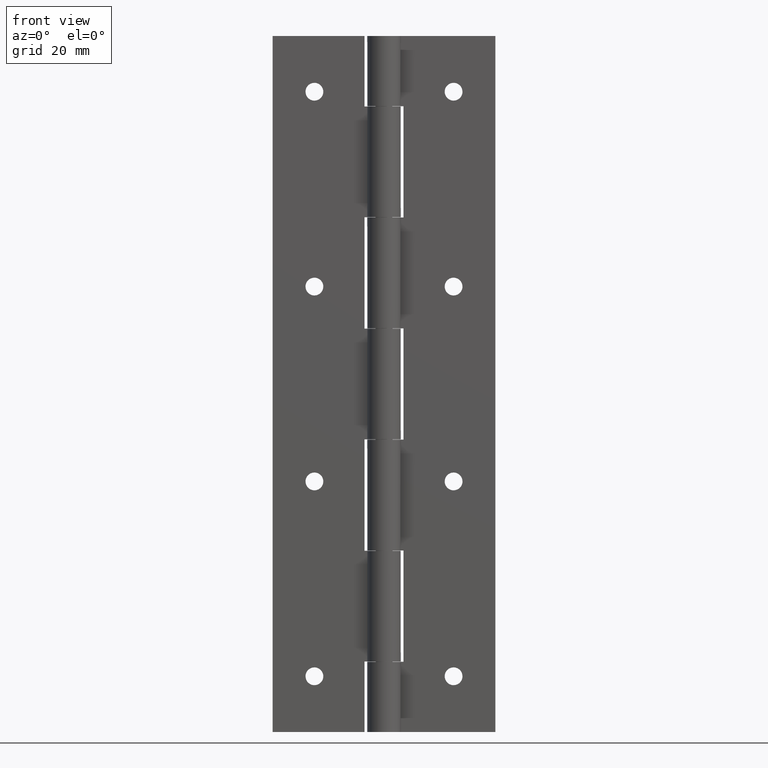
[diagram: clean part render]
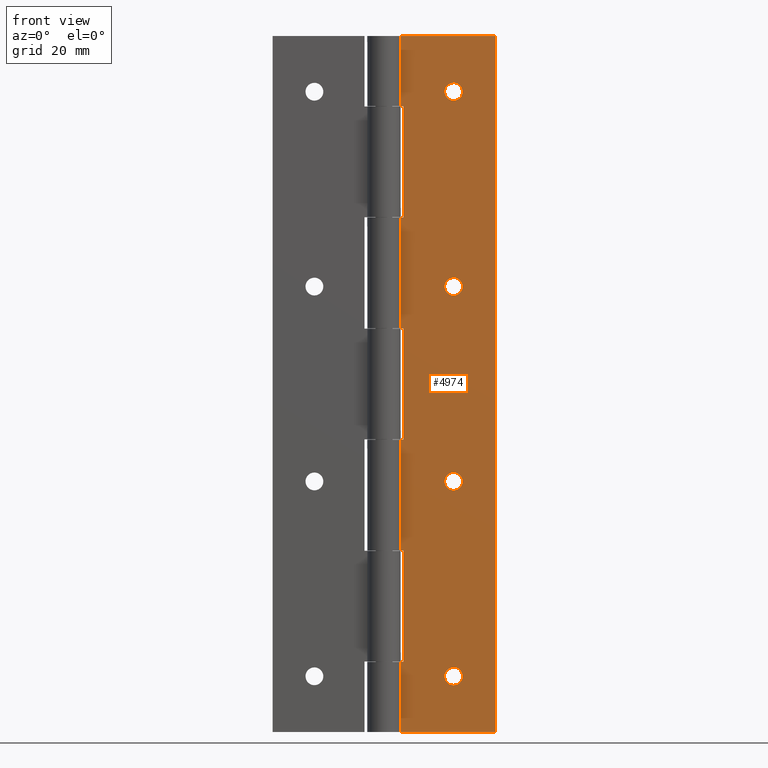
[diagram: same view with one face highlighted and labeled with its STEP entity id]
A machine part, front view. The second image highlights one B-rep face of the part: STEP entity #4974.
In plain terms, the highlighted face is a freeform B-spline surface patch.
Its self-contained STEP definition (entity closure, byte-faithful):
#3541=CARTESIAN_POINT('',(12.500000000000000,0.800000000000023,116.599999999999990));
#3542=VERTEX_POINT('',#3541);
#3543=CARTESIAN_POINT('',(10.904932266108959,0.800000000000023,115.125534554206000));
#3544=VERTEX_POINT('',#3543);
#3545=CARTESIAN_POINT('',(12.500000000000000,0.800000000000023,116.599999999999990));
#3546=CARTESIAN_POINT('',(11.020975215284272,0.800000000000023,116.600000000000010));
#3547=CARTESIAN_POINT('',(10.904932266108968,0.800000000000023,115.125534554206030));
#3555=(BOUNDED_CURVE()B_SPLINE_CURVE(2,(#3545,#3546,#3547),.UNSPECIFIED.,.F.,.U.)B_SPLINE_CURVE_WITH_KNOTS((3,3),(0.0,0.236331300408907),.UNSPECIFIED.)CURVE()GEOMETRIC_REPRESENTATION_ITEM()RATIONAL_B_SPLINE_CURVE((1.0,0.723120658867465,0.969723355704637))REPRESENTATION_ITEM(''));
#3556=EDGE_CURVE('',#3542,#3544,#3555,.T.);
#3597=CARTESIAN_POINT('',(14.095067733891041,0.800000000000023,114.874465445794000));
#3598=VERTEX_POINT('',#3597);
#3604=CARTESIAN_POINT('',(14.095067733891035,0.800000000000023,114.874465445793990));
#3605=CARTESIAN_POINT('',(14.100000000000007,0.800000000000023,114.937135827741410));
#3606=CARTESIAN_POINT('',(14.100000000000000,0.800000000000023,115.0));
#3607=CARTESIAN_POINT('',(14.100000000000001,0.800000000000023,116.600000000000010));
#3608=CARTESIAN_POINT('',(12.500000000000000,0.800000000000023,116.599999999999990));
#3616=(BOUNDED_CURVE()B_SPLINE_CURVE(2,(#3604,#3605,#3606,#3607,#3608),.UNSPECIFIED.,.F.,.U.)B_SPLINE_CURVE_WITH_KNOTS((3,2,3),(0.736331300408906,0.750000000000000,1.0),.UNSPECIFIED.)CURVE()GEOMETRIC_REPRESENTATION_ITEM()RATIONAL_B_SPLINE_CURVE((0.969723355704634,0.983986122319081,1.0,0.707106781186548,1.0))REPRESENTATION_ITEM(''));
#3617=EDGE_CURVE('',#3598,#3542,#3616,.T.);
#3640=CARTESIAN_POINT('',(12.500000000000000,0.800000000000023,113.400000000000010));
#3641=VERTEX_POINT('',#3640);
#3642=CARTESIAN_POINT('',(10.904932266108968,0.800000000000023,115.125534554206030));
#3643=CARTESIAN_POINT('',(10.899999999999999,0.800000000000023,115.062864172258560));
#3644=CARTESIAN_POINT('',(10.900000000000000,0.800000000000023,115.0));
#3645=CARTESIAN_POINT('',(10.900000000000000,0.800000000000023,113.400000000000010));
#3646=CARTESIAN_POINT('',(12.500000000000000,0.800000000000023,113.400000000000010));
#3654=(BOUNDED_CURVE()B_SPLINE_CURVE(2,(#3642,#3643,#3644,#3645,#3646),.UNSPECIFIED.,.F.,.U.)B_SPLINE_CURVE_WITH_KNOTS((3,2,3),(0.236331300408907,0.250000000000000,0.500000000000000),.UNSPECIFIED.)CURVE()GEOMETRIC_REPRESENTATION_ITEM()RATIONAL_B_SPLINE_CURVE((0.969723355704637,0.983986122319083,1.0,0.707106781186548,1.0))REPRESENTATION_ITEM(''));
#3655=EDGE_CURVE('',#3544,#3641,#3654,.T.);
#3657=CARTESIAN_POINT('',(12.500000000000000,0.800000000000023,113.400000000000010));
#3658=CARTESIAN_POINT('',(13.979024784715714,0.800000000000023,113.400000000000010));
#3659=CARTESIAN_POINT('',(14.095067733891041,0.800000000000023,114.874465445794020));
#3667=(BOUNDED_CURVE()B_SPLINE_CURVE(2,(#3657,#3658,#3659),.UNSPECIFIED.,.F.,.U.)B_SPLINE_CURVE_WITH_KNOTS((3,3),(0.500000000000000,0.736331300408905),.UNSPECIFIED.)CURVE()GEOMETRIC_REPRESENTATION_ITEM()RATIONAL_B_SPLINE_CURVE((1.0,0.723120658867467,0.969723355704633))REPRESENTATION_ITEM(''));
#3668=EDGE_CURVE('',#3641,#3598,#3667,.T.);
#3723=CARTESIAN_POINT('',(12.500000000000000,0.800000000000023,81.600000000000009));
#3724=VERTEX_POINT('',#3723);
#3725=CARTESIAN_POINT('',(10.904932266108959,0.800000000000023,80.125534554206041));
#3726=VERTEX_POINT('',#3725);
#3727=CARTESIAN_POINT('',(12.500000000000000,0.800000000000023,81.600000000000009));
#3728=CARTESIAN_POINT('',(11.020975215284272,0.800000000000023,81.599999999999994));
#3729=CARTESIAN_POINT('',(10.904932266108959,0.800000000000023,80.125534554206041));
#3737=(BOUNDED_CURVE()B_SPLINE_CURVE(2,(#3727,#3728,#3729),.UNSPECIFIED.,.F.,.U.)B_SPLINE_CURVE_WITH_KNOTS((3,3),(0.0,0.236331300408907),.UNSPECIFIED.)CURVE()GEOMETRIC_REPRESENTATION_ITEM()RATIONAL_B_SPLINE_CURVE((1.0,0.723120658867465,0.969723355704637))REPRESENTATION_ITEM(''));
#3738=EDGE_CURVE('',#3724,#3726,#3737,.T.);
#3779=CARTESIAN_POINT('',(14.095067733891041,0.800000000000023,79.874465445793959));
#3780=VERTEX_POINT('',#3779);
#3786=CARTESIAN_POINT('',(14.095067733891035,0.800000000000023,79.874465445793959));
#3787=CARTESIAN_POINT('',(14.100000000000007,0.800000000000023,79.937135827741400));
#3788=CARTESIAN_POINT('',(14.100000000000000,0.800000000000023,80.0));
#3789=CARTESIAN_POINT('',(14.100000000000001,0.800000000000023,81.600000000000009));
#3790=CARTESIAN_POINT('',(12.500000000000000,0.800000000000023,81.600000000000009));
#3798=(BOUNDED_CURVE()B_SPLINE_CURVE(2,(#3786,#3787,#3788,#3789,#3790),.UNSPECIFIED.,.F.,.U.)B_SPLINE_CURVE_WITH_KNOTS((3,2,3),(0.736331300408906,0.750000000000000,1.0),.UNSPECIFIED.)CURVE()GEOMETRIC_REPRESENTATION_ITEM()RATIONAL_B_SPLINE_CURVE((0.969723355704634,0.983986122319081,1.0,0.707106781186548,1.0))REPRESENTATION_ITEM(''));
#3799=EDGE_CURVE('',#3780,#3724,#3798,.T.);
#3822=CARTESIAN_POINT('',(12.500000000000000,0.800000000000023,78.399999999999991));
#3823=VERTEX_POINT('',#3822);
#3824=CARTESIAN_POINT('',(10.904932266108968,0.800000000000023,80.125534554206041));
#3825=CARTESIAN_POINT('',(10.900000000000000,0.800000000000023,80.062864172258600));
#3826=CARTESIAN_POINT('',(10.900000000000000,0.800000000000023,80.0));
#3827=CARTESIAN_POINT('',(10.900000000000000,0.800000000000023,78.399999999999991));
#3828=CARTESIAN_POINT('',(12.500000000000000,0.800000000000023,78.399999999999991));
#3836=(BOUNDED_CURVE()B_SPLINE_CURVE(2,(#3824,#3825,#3826,#3827,#3828),.UNSPECIFIED.,.F.,.U.)B_SPLINE_CURVE_WITH_KNOTS((3,2,3),(0.236331300408907,0.250000000000000,0.500000000000000),.UNSPECIFIED.)CURVE()GEOMETRIC_REPRESENTATION_ITEM()RATIONAL_B_SPLINE_CURVE((0.969723355704637,0.983986122319083,1.0,0.707106781186548,1.0))REPRESENTATION_ITEM(''));
#3837=EDGE_CURVE('',#3726,#3823,#3836,.T.);
#3839=CARTESIAN_POINT('',(12.500000000000000,0.800000000000023,78.399999999999991));
#3840=CARTESIAN_POINT('',(13.979024784715714,0.800000000000023,78.399999999999991));
#3841=CARTESIAN_POINT('',(14.095067733891041,0.800000000000023,79.874465445793959));
#3849=(BOUNDED_CURVE()B_SPLINE_CURVE(2,(#3839,#3840,#3841),.UNSPECIFIED.,.F.,.U.)B_SPLINE_CURVE_WITH_KNOTS((3,3),(0.500000000000000,0.736331300408905),.UNSPECIFIED.)CURVE()GEOMETRIC_REPRESENTATION_ITEM()RATIONAL_B_SPLINE_CURVE((1.0,0.723120658867467,0.969723355704633))REPRESENTATION_ITEM(''));
#3850=EDGE_CURVE('',#3823,#3780,#3849,.T.);
#3905=CARTESIAN_POINT('',(12.500000000000000,0.800000000000023,46.599999999999987));
#3906=VERTEX_POINT('',#3905);
#3907=CARTESIAN_POINT('',(10.904932266108959,0.800000000000023,45.125534554206041));
#3908=VERTEX_POINT('',#3907);
#3909=CARTESIAN_POINT('',(12.500000000000000,0.800000000000023,46.599999999999987));
#3910=CARTESIAN_POINT('',(11.020975215284283,0.800000000000023,46.599999999999994));
#3911=CARTESIAN_POINT('',(10.904932266108961,0.800000000000023,45.125534554206034));
#3919=(BOUNDED_CURVE()B_SPLINE_CURVE(2,(#3909,#3910,#3911),.UNSPECIFIED.,.F.,.U.)B_SPLINE_CURVE_WITH_KNOTS((3,3),(0.0,0.236331300408906),.UNSPECIFIED.)CURVE()GEOMETRIC_REPRESENTATION_ITEM()RATIONAL_B_SPLINE_CURVE((1.0,0.723120658867467,0.969723355704634))REPRESENTATION_ITEM(''));
#3920=EDGE_CURVE('',#3906,#3908,#3919,.T.);
#3961=CARTESIAN_POINT('',(14.095067733891041,0.800000000000023,44.874465445793959));
#3962=VERTEX_POINT('',#3961);
#3968=CARTESIAN_POINT('',(14.095067733891039,0.800000000000023,44.874465445793966));
#3969=CARTESIAN_POINT('',(14.100000000000003,0.800000000000023,44.937135827741407));
#3970=CARTESIAN_POINT('',(14.100000000000000,0.800000000000023,45.0));
#3971=CARTESIAN_POINT('',(14.100000000000001,0.800000000000023,46.599999999999987));
#3972=CARTESIAN_POINT('',(12.500000000000000,0.800000000000023,46.599999999999987));
#3980=(BOUNDED_CURVE()B_SPLINE_CURVE(2,(#3968,#3969,#3970,#3971,#3972),.UNSPECIFIED.,.F.,.U.)B_SPLINE_CURVE_WITH_KNOTS((3,2,3),(0.736331300408906,0.750000000000000,1.0),.UNSPECIFIED.)CURVE()GEOMETRIC_REPRESENTATION_ITEM()RATIONAL_B_SPLINE_CURVE((0.969723355704635,0.983986122319081,1.0,0.707106781186548,1.0))REPRESENTATION_ITEM(''));
#3981=EDGE_CURVE('',#3962,#3906,#3980,.T.);
#4004=CARTESIAN_POINT('',(12.500000000000000,0.800000000000023,43.399999999999999));
#4005=VERTEX_POINT('',#4004);
#4006=CARTESIAN_POINT('',(10.904932266108965,0.800000000000023,45.125534554206041));
#4007=CARTESIAN_POINT('',(10.900000000000000,0.800000000000023,45.062864172258600));
#4008=CARTESIAN_POINT('',(10.900000000000000,0.800000000000023,45.0));
#4009=CARTESIAN_POINT('',(10.900000000000000,0.800000000000023,43.399999999999991));
#4010=CARTESIAN_POINT('',(12.500000000000000,0.800000000000023,43.399999999999999));
#4018=(BOUNDED_CURVE()B_SPLINE_CURVE(2,(#4006,#4007,#4008,#4009,#4010),.UNSPECIFIED.,.F.,.U.)B_SPLINE_CURVE_WITH_KNOTS((3,2,3),(0.236331300408905,0.250000000000000,0.500000000000000),.UNSPECIFIED.)CURVE()GEOMETRIC_REPRESENTATION_ITEM()RATIONAL_B_SPLINE_CURVE((0.969723355704634,0.983986122319081,1.0,0.707106781186548,1.0))REPRESENTATION_ITEM(''));
#4019=EDGE_CURVE('',#3908,#4005,#4018,.T.);
#4021=CARTESIAN_POINT('',(12.500000000000000,0.800000000000023,43.399999999999999));
#4022=CARTESIAN_POINT('',(13.979024784715714,0.800000000000023,43.399999999999999));
#4023=CARTESIAN_POINT('',(14.095067733891041,0.800000000000023,44.874465445793966));
#4031=(BOUNDED_CURVE()B_SPLINE_CURVE(2,(#4021,#4022,#4023),.UNSPECIFIED.,.F.,.U.)B_SPLINE_CURVE_WITH_KNOTS((3,3),(0.500000000000000,0.736331300408905),.UNSPECIFIED.)CURVE()GEOMETRIC_REPRESENTATION_ITEM()RATIONAL_B_SPLINE_CURVE((1.0,0.723120658867467,0.969723355704633))REPRESENTATION_ITEM(''));
#4032=EDGE_CURVE('',#4005,#3962,#4031,.T.);
#4087=CARTESIAN_POINT('',(12.500000000000000,0.800000000000023,11.600000000000000));
#4088=VERTEX_POINT('',#4087);
#4089=CARTESIAN_POINT('',(10.904932266108959,0.800000000000023,10.125534554206039));
#4090=VERTEX_POINT('',#4089);
#4091=CARTESIAN_POINT('',(12.500000000000000,0.800000000000023,11.600000000000000));
#4092=CARTESIAN_POINT('',(11.020975215284279,0.800000000000023,11.600000000000001));
#4093=CARTESIAN_POINT('',(10.904932266108963,0.800000000000023,10.125534554206038));
#4101=(BOUNDED_CURVE()B_SPLINE_CURVE(2,(#4091,#4092,#4093),.UNSPECIFIED.,.F.,.U.)B_SPLINE_CURVE_WITH_KNOTS((3,3),(0.0,0.236331300408906),.UNSPECIFIED.)CURVE()GEOMETRIC_REPRESENTATION_ITEM()RATIONAL_B_SPLINE_CURVE((1.0,0.723120658867466,0.969723355704636))REPRESENTATION_ITEM(''));
#4102=EDGE_CURVE('',#4088,#4090,#4101,.T.);
#4143=CARTESIAN_POINT('',(14.095067733891041,0.800000000000023,9.874465445793961));
#4144=VERTEX_POINT('',#4143);
#4150=CARTESIAN_POINT('',(14.095067733891039,0.800000000000023,9.874465445793961));
#4151=CARTESIAN_POINT('',(14.099999999999998,0.800000000000023,9.937135827741408));
#4152=CARTESIAN_POINT('',(14.100000000000000,0.800000000000023,10.0));
#4153=CARTESIAN_POINT('',(14.100000000000001,0.800000000000023,11.600000000000001));
#4154=CARTESIAN_POINT('',(12.500000000000000,0.800000000000023,11.600000000000000));
#4162=(BOUNDED_CURVE()B_SPLINE_CURVE(2,(#4150,#4151,#4152,#4153,#4154),.UNSPECIFIED.,.F.,.U.)B_SPLINE_CURVE_WITH_KNOTS((3,2,3),(0.736331300408906,0.750000000000000,1.0),.UNSPECIFIED.)CURVE()GEOMETRIC_REPRESENTATION_ITEM()RATIONAL_B_SPLINE_CURVE((0.969723355704635,0.983986122319082,1.0,0.707106781186548,1.0))REPRESENTATION_ITEM(''));
#4163=EDGE_CURVE('',#4144,#4088,#4162,.T.);
#4186=CARTESIAN_POINT('',(12.500000000000000,0.800000000000023,8.400000000000000));
#4187=VERTEX_POINT('',#4186);
#4188=CARTESIAN_POINT('',(10.904932266108961,0.800000000000023,10.125534554206038));
#4189=CARTESIAN_POINT('',(10.900000000000006,0.800000000000023,10.062864172258591));
#4190=CARTESIAN_POINT('',(10.900000000000000,0.800000000000023,10.0));
#4191=CARTESIAN_POINT('',(10.900000000000000,0.800000000000023,8.400000000000000));
#4192=CARTESIAN_POINT('',(12.500000000000000,0.800000000000023,8.400000000000000));
#4200=(BOUNDED_CURVE()B_SPLINE_CURVE(2,(#4188,#4189,#4190,#4191,#4192),.UNSPECIFIED.,.F.,.U.)B_SPLINE_CURVE_WITH_KNOTS((3,2,3),(0.236331300408906,0.250000000000000,0.500000000000000),.UNSPECIFIED.)CURVE()GEOMETRIC_REPRESENTATION_ITEM()RATIONAL_B_SPLINE_CURVE((0.969723355704636,0.983986122319082,1.0,0.707106781186548,1.0))REPRESENTATION_ITEM(''));
#4201=EDGE_CURVE('',#4090,#4187,#4200,.T.);
#4203=CARTESIAN_POINT('',(12.500000000000000,0.800000000000023,8.400000000000000));
#4204=CARTESIAN_POINT('',(13.979024784715737,0.800000000000023,8.400000000000000));
#4205=CARTESIAN_POINT('',(14.095067733891039,0.800000000000023,9.874465445793961));
#4213=(BOUNDED_CURVE()B_SPLINE_CURVE(2,(#4203,#4204,#4205),.UNSPECIFIED.,.F.,.U.)B_SPLINE_CURVE_WITH_KNOTS((3,3),(0.500000000000000,0.736331300408907),.UNSPECIFIED.)CURVE()GEOMETRIC_REPRESENTATION_ITEM()RATIONAL_B_SPLINE_CURVE((1.0,0.723120658867465,0.969723355704638))REPRESENTATION_ITEM(''));
#4214=EDGE_CURVE('',#4187,#4144,#4213,.T.);
#4256=CARTESIAN_POINT('',(2.891366458960195,0.799999999999990,32.599999999999987));
#4257=VERTEX_POINT('',#4256);
#4258=CARTESIAN_POINT('',(3.500000000000000,0.800000000000023,32.599999999999987));
#4259=VERTEX_POINT('',#4258);
#4260=CARTESIAN_POINT('',(2.891366458960195,0.799999999999990,32.599999999999987));
#4261=CARTESIAN_POINT('',(3.500000000000000,0.800000000000023,32.599999999999987));
#4262=QUASI_UNIFORM_CURVE('',1,(#4260,#4261),.UNSPECIFIED.,.F.,.U.);
#4263=EDGE_CURVE('',#4257,#4259,#4262,.T.);
#4320=CARTESIAN_POINT('',(3.500000000000000,0.800000000000023,12.600000000000000));
#4321=VERTEX_POINT('',#4320);
#4327=CARTESIAN_POINT('',(3.500000000000000,0.800000000000023,32.599999999999987));
#4328=CARTESIAN_POINT('',(3.500000000000000,0.800000000000023,12.600000000000000));
#4329=QUASI_UNIFORM_CURVE('',1,(#4327,#4328),.UNSPECIFIED.,.F.,.U.);
#4330=EDGE_CURVE('',#4259,#4321,#4329,.T.);
#4348=CARTESIAN_POINT('',(2.891366458960195,0.799999999999990,12.600000000000160));
#4349=VERTEX_POINT('',#4348);
#4369=CARTESIAN_POINT('',(3.500000000000000,0.800000000000023,12.600000000000000));
#4370=CARTESIAN_POINT('',(2.891366458960195,0.799999999999990,12.600000000000160));
#4371=QUASI_UNIFORM_CURVE('',1,(#4369,#4370),.UNSPECIFIED.,.F.,.U.);
#4372=EDGE_CURVE('',#4321,#4349,#4371,.T.);
#4388=CARTESIAN_POINT('',(2.891366458960195,0.799999999999990,72.500000000000000));
#4389=VERTEX_POINT('',#4388);
#4390=CARTESIAN_POINT('',(3.500000000000000,0.800000000000023,72.500000000000000));
#4391=VERTEX_POINT('',#4390);
#4392=CARTESIAN_POINT('',(2.891366458960195,0.799999999999990,72.500000000000000));
#4393=CARTESIAN_POINT('',(3.500000000000000,0.800000000000023,72.500000000000000));
#4394=QUASI_UNIFORM_CURVE('',1,(#4392,#4393),.UNSPECIFIED.,.F.,.U.);
#4395=EDGE_CURVE('',#4389,#4391,#4394,.T.);
#4452=CARTESIAN_POINT('',(3.500000000000000,0.800000000000023,52.500000000000000));
#4453=VERTEX_POINT('',#4452);
#4459=CARTESIAN_POINT('',(3.500000000000000,0.800000000000023,72.500000000000000));
#4460=CARTESIAN_POINT('',(3.500000000000000,0.800000000000023,52.500000000000000));
#4461=QUASI_UNIFORM_CURVE('',1,(#4459,#4460),.UNSPECIFIED.,.F.,.U.);
#4462=EDGE_CURVE('',#4391,#4453,#4461,.T.);
#4480=CARTESIAN_POINT('',(2.891366458960195,0.799999999999990,52.500000000000000));
#4481=VERTEX_POINT('',#4480);
#4501=CARTESIAN_POINT('',(3.500000000000000,0.800000000000023,52.500000000000000));
#4502=CARTESIAN_POINT('',(2.891366458960195,0.799999999999990,52.500000000000000));
#4503=QUASI_UNIFORM_CURVE('',1,(#4501,#4502),.UNSPECIFIED.,.F.,.U.);
#4504=EDGE_CURVE('',#4453,#4481,#4503,.T.);
#4520=CARTESIAN_POINT('',(2.891366458960195,0.799999999999990,112.400000000000010));
#4521=VERTEX_POINT('',#4520);
#4522=CARTESIAN_POINT('',(3.500000000000000,0.800000000000023,112.400000000000010));
#4523=VERTEX_POINT('',#4522);
#4524=CARTESIAN_POINT('',(2.891366458960195,0.799999999999990,112.400000000000010));
#4525=CARTESIAN_POINT('',(3.500000000000000,0.800000000000023,112.400000000000010));
#4526=QUASI_UNIFORM_CURVE('',1,(#4524,#4525),.UNSPECIFIED.,.F.,.U.);
#4527=EDGE_CURVE('',#4521,#4523,#4526,.T.);
#4584=CARTESIAN_POINT('',(3.500000000000000,0.800000000000023,92.399999999999991));
#4585=VERTEX_POINT('',#4584);
#4591=CARTESIAN_POINT('',(3.500000000000000,0.800000000000023,112.400000000000010));
#4592=CARTESIAN_POINT('',(3.500000000000000,0.800000000000023,92.399999999999991));
#4593=QUASI_UNIFORM_CURVE('',1,(#4591,#4592),.UNSPECIFIED.,.F.,.U.);
#4594=EDGE_CURVE('',#4523,#4585,#4593,.T.);
#4612=CARTESIAN_POINT('',(2.891366458960195,0.799999999999990,92.399999999999991));
#4613=VERTEX_POINT('',#4612);
#4633=CARTESIAN_POINT('',(3.500000000000000,0.800000000000023,92.399999999999991));
#4634=CARTESIAN_POINT('',(2.891366458960195,0.799999999999990,92.399999999999991));
#4635=QUASI_UNIFORM_CURVE('',1,(#4633,#4634),.UNSPECIFIED.,.F.,.U.);
#4636=EDGE_CURVE('',#4585,#4613,#4635,.T.);
#4661=CARTESIAN_POINT('',(20.0,0.799999999999990,0.0));
#4662=VERTEX_POINT('',#4661);
#4668=CARTESIAN_POINT('',(2.891366458960195,0.799999999999990,0.0));
#4669=VERTEX_POINT('',#4668);
#4670=CARTESIAN_POINT('',(20.0,0.799999999999990,0.0));
#4671=CARTESIAN_POINT('',(2.891366458960195,0.799999999999990,0.0));
#4672=QUASI_UNIFORM_CURVE('',1,(#4670,#4671),.UNSPECIFIED.,.F.,.U.);
#4673=EDGE_CURVE('',#4662,#4669,#4672,.T.);
#4717=CARTESIAN_POINT('',(2.891366458960195,0.799999999999990,125.0));
#4718=VERTEX_POINT('',#4717);
#4738=CARTESIAN_POINT('',(20.0,0.799999999999990,125.0));
#4739=VERTEX_POINT('',#4738);
#4740=CARTESIAN_POINT('',(20.0,0.799999999999990,125.0));
#4741=CARTESIAN_POINT('',(2.891366458960195,0.799999999999990,125.0));
#4742=QUASI_UNIFORM_CURVE('',1,(#4740,#4741),.UNSPECIFIED.,.F.,.U.);
#4743=EDGE_CURVE('',#4739,#4718,#4742,.T.);
#4771=CARTESIAN_POINT('',(20.0,0.799999999999990,125.0));
#4772=CARTESIAN_POINT('',(20.0,0.799999999999990,0.0));
#4773=QUASI_UNIFORM_CURVE('',1,(#4771,#4772),.UNSPECIFIED.,.F.,.U.);
#4774=EDGE_CURVE('',#4739,#4662,#4773,.T.);
#4802=CARTESIAN_POINT('',(2.891366458960195,0.799999999999990,125.0));
#4803=CARTESIAN_POINT('',(2.891366458960195,0.799999999999990,112.400000000000010));
#4804=QUASI_UNIFORM_CURVE('',1,(#4802,#4803),.UNSPECIFIED.,.F.,.U.);
#4805=EDGE_CURVE('',#4718,#4521,#4804,.T.);
#4839=CARTESIAN_POINT('',(2.891366458960195,0.799999999999990,92.399999999999991));
#4840=CARTESIAN_POINT('',(2.891366458960195,0.799999999999990,72.500000000000000));
#4841=QUASI_UNIFORM_CURVE('',1,(#4839,#4840),.UNSPECIFIED.,.F.,.U.);
#4842=EDGE_CURVE('',#4613,#4389,#4841,.T.);
#4876=CARTESIAN_POINT('',(2.891366458960195,0.799999999999990,52.500000000000000));
#4877=CARTESIAN_POINT('',(2.891366458960195,0.799999999999990,32.599999999999987));
#4878=QUASI_UNIFORM_CURVE('',1,(#4876,#4877),.UNSPECIFIED.,.F.,.U.);
#4879=EDGE_CURVE('',#4481,#4257,#4878,.T.);
#4919=CARTESIAN_POINT('',(2.891366458960195,0.799999999999990,12.600000000000160));
#4920=CARTESIAN_POINT('',(2.891366458960195,0.799999999999990,0.0));
#4921=QUASI_UNIFORM_CURVE('',1,(#4919,#4920),.UNSPECIFIED.,.F.,.U.);
#4922=EDGE_CURVE('',#4349,#4669,#4921,.T.);
#4927=CARTESIAN_POINT('',(2.036790246745108,0.799999999999990,131.243749757725710));
#4928=CARTESIAN_POINT('',(2.036790246745108,0.799999999999990,-6.243753110487013));
#4929=CARTESIAN_POINT('',(20.854576671104390,0.799999999999990,131.243749757725710));
#4930=CARTESIAN_POINT('',(20.854576671104390,0.799999999999990,-6.243753110487013));
#4931=B_SPLINE_SURFACE_WITH_KNOTS('',1,1,((#4927,#4929),(#4928,#4930)),.UNSPECIFIED.,.F.,.F.,.U.,(2,2),(2,2),(0.0,137.487502868212690),(0.0,18.817786424359280),.UNSPECIFIED.);
#4932=ORIENTED_EDGE('',*,*,#4330,.T.);
#4933=ORIENTED_EDGE('',*,*,#4372,.T.);
#4934=ORIENTED_EDGE('',*,*,#4922,.T.);
#4935=ORIENTED_EDGE('',*,*,#4673,.F.);
#4936=ORIENTED_EDGE('',*,*,#4774,.F.);
#4937=ORIENTED_EDGE('',*,*,#4743,.T.);
#4938=ORIENTED_EDGE('',*,*,#4805,.T.);
#4939=ORIENTED_EDGE('',*,*,#4527,.T.);
#4940=ORIENTED_EDGE('',*,*,#4594,.T.);
#4941=ORIENTED_EDGE('',*,*,#4636,.T.);
#4942=ORIENTED_EDGE('',*,*,#4842,.T.);
#4943=ORIENTED_EDGE('',*,*,#4395,.T.);
#4944=ORIENTED_EDGE('',*,*,#4462,.T.);
#4945=ORIENTED_EDGE('',*,*,#4504,.T.);
#4946=ORIENTED_EDGE('',*,*,#4879,.T.);
#4947=ORIENTED_EDGE('',*,*,#4263,.T.);
#4948=EDGE_LOOP('',(#4932,#4933,#4934,#4935,#4936,#4937,#4938,#4939,#4940,#4941,#4942,#4943,#4944,#4945,#4946,#4947));
#4949=FACE_OUTER_BOUND('',#4948,.T.);
#4950=ORIENTED_EDGE('',*,*,#4214,.F.);
#4951=ORIENTED_EDGE('',*,*,#4201,.F.);
#4952=ORIENTED_EDGE('',*,*,#4102,.F.);
#4953=ORIENTED_EDGE('',*,*,#4163,.F.);
#4954=EDGE_LOOP('',(#4950,#4951,#4952,#4953));
#4955=FACE_BOUND('',#4954,.T.);
#4956=ORIENTED_EDGE('',*,*,#4032,.F.);
#4957=ORIENTED_EDGE('',*,*,#4019,.F.);
#4958=ORIENTED_EDGE('',*,*,#3920,.F.);
#4959=ORIENTED_EDGE('',*,*,#3981,.F.);
#4960=EDGE_LOOP('',(#4956,#4957,#4958,#4959));
#4961=FACE_BOUND('',#4960,.T.);
#4962=ORIENTED_EDGE('',*,*,#3850,.F.);
#4963=ORIENTED_EDGE('',*,*,#3837,.F.);
#4964=ORIENTED_EDGE('',*,*,#3738,.F.);
#4965=ORIENTED_EDGE('',*,*,#3799,.F.);
#4966=EDGE_LOOP('',(#4962,#4963,#4964,#4965));
#4967=FACE_BOUND('',#4966,.T.);
#4968=ORIENTED_EDGE('',*,*,#3668,.F.);
#4969=ORIENTED_EDGE('',*,*,#3655,.F.);
#4970=ORIENTED_EDGE('',*,*,#3556,.F.);
#4971=ORIENTED_EDGE('',*,*,#3617,.F.);
#4972=EDGE_LOOP('',(#4968,#4969,#4970,#4971));
#4973=FACE_BOUND('',#4972,.T.);
#4974=ADVANCED_FACE('',(#4949,#4955,#4961,#4967,#4973),#4931,.T.);